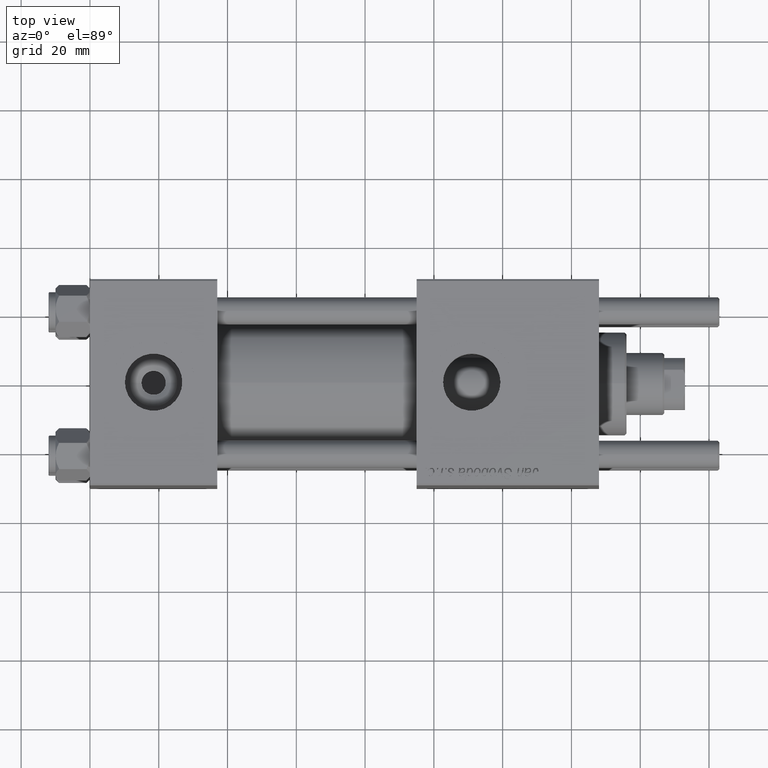
[diagram: clean part render]
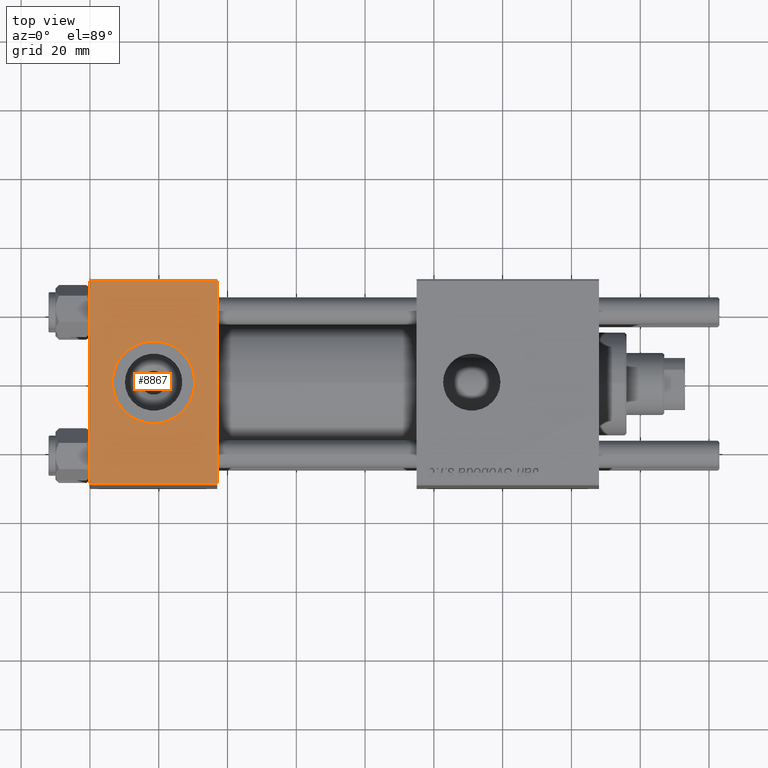
[diagram: same view with one face highlighted and labeled with its STEP entity id]
A machine part, top view. The second image highlights one B-rep face of the part: STEP entity #8867.
In plain terms, the highlighted planar face has unit normal (0, 0, -1).
Its self-contained STEP definition (entity closure, byte-faithful):
#170 = DIRECTION ( 'NONE',  ( 0.000000000000000000, 1.156482317317871725E-16, -1.000000000000000000 ) ) ;
#1518 = PLANE ( 'NONE',  #51018 ) ;
#1839 = LINE ( 'NONE', #24488, #32304 ) ;
#3100 = DIRECTION ( 'NONE',  ( 0.000000000000000000, 0.000000000000000000, 1.000000000000000000 ) ) ;
#4977 = ORIENTED_EDGE ( 'NONE', *, *, #14951, .T. ) ;
#6012 = EDGE_CURVE ( 'NONE', #16220, #22099, #18776, .T. ) ;
#7000 = EDGE_CURVE ( 'NONE', #22099, #16220, #21570, .T. ) ;
#8867 = ADVANCED_FACE ( 'NONE', ( #23334, #48453 ), #1518, .F. ) ;
#10127 = CARTESIAN_POINT ( 'NONE',  ( 6.499999999999997335, -1.999870792976790833E-15, 29.99999999999999645 ) ) ;
#10302 = DIRECTION ( 'NONE',  ( 1.000000000000000000, 0.000000000000000000, 0.000000000000000000 ) ) ;
#11152 = CARTESIAN_POINT ( 'NONE',  ( 37.00000000000000000, 29.49999999999999289, 30.00000000000000000 ) ) ;
#11790 = CARTESIAN_POINT ( 'NONE',  ( 37.00000000000000000, -29.49999999999998579, 29.99999999999999289 ) ) ;
#11849 = VECTOR ( 'NONE', #10302, 1000.000000000000000 ) ;
#12290 = DIRECTION ( 'NONE',  ( 0.000000000000000000, 0.000000000000000000, 1.000000000000000000 ) ) ;
#14298 = EDGE_CURVE ( 'NONE', #47998, #46889, #20913, .T. ) ;
#14718 = CARTESIAN_POINT ( 'NONE',  ( 37.00000000000000000, 29.99999999999999289, 30.00000000000000000 ) ) ;
#14951 = EDGE_CURVE ( 'NONE', #28483, #31571, #1839, .T. ) ;
#16220 = VERTEX_POINT ( 'NONE', #23872 ) ;
#16298 = DIRECTION ( 'NONE',  ( 1.000000000000000000, 0.000000000000000000, 0.000000000000000000 ) ) ;
#17016 = AXIS2_PLACEMENT_3D ( 'NONE', #51668, #12290, #24651 ) ;
#17090 = ORIENTED_EDGE ( 'NONE', *, *, #7000, .F. ) ;
#17932 = LINE ( 'NONE', #26833, #52226 ) ;
#18776 = CIRCLE ( 'NONE', #27063, 12.00000000000000000 ) ;
#19026 = DIRECTION ( 'NONE',  ( 0.000000000000000000, 1.000000000000000000, 1.156482317317871725E-16 ) ) ;
#19135 = CARTESIAN_POINT ( 'NONE',  ( 0.000000000000000000, 29.49999999999999289, 30.00000000000000000 ) ) ;
#20913 = LINE ( 'NONE', #21190, #29535 ) ;
#21190 = CARTESIAN_POINT ( 'NONE',  ( 37.00000000000000000, 29.99999999999999289, 30.00000000000000000 ) ) ;
#21570 = CIRCLE ( 'NONE', #17016, 12.00000000000000000 ) ;
#22099 = VERTEX_POINT ( 'NONE', #10127 ) ;
#22808 = EDGE_LOOP ( 'NONE', ( #37709, #17090 ) ) ;
#23334 = FACE_BOUND ( 'NONE', #22808, .T. ) ;
#23872 = CARTESIAN_POINT ( 'NONE',  ( 30.50000000000000000, -3.469446951953614978E-15, 29.99999999999999645 ) ) ;
#24488 = CARTESIAN_POINT ( 'NONE',  ( 0.000000000000000000, 29.99999999999999289, 30.00000000000000000 ) ) ;
#24651 = DIRECTION ( 'NONE',  ( 1.000000000000000000, 0.000000000000000000, 0.000000000000000000 ) ) ;
#26808 = ORIENTED_EDGE ( 'NONE', *, *, #40247, .T. ) ;
#26833 = CARTESIAN_POINT ( 'NONE',  ( 0.000000000000000000, 29.49999999999999289, 30.00000000000000000 ) ) ;
#27063 = AXIS2_PLACEMENT_3D ( 'NONE', #29798, #3100, #16298 ) ;
#28483 = VERTEX_POINT ( 'NONE', #19135 ) ;
#29535 = VECTOR ( 'NONE', #34393, 1000.000000000000000 ) ;
#29798 = CARTESIAN_POINT ( 'NONE',  ( 18.50000000000000000, -3.469446951953614978E-15, 29.99999999999999645 ) ) ;
#31571 = VERTEX_POINT ( 'NONE', #51212 ) ;
#32304 = VECTOR ( 'NONE', #36858, 1000.000000000000000 ) ;
#34393 = DIRECTION ( 'NONE',  ( 0.000000000000000000, -1.000000000000000000, -1.156482317317871725E-16 ) ) ;
#36858 = DIRECTION ( 'NONE',  ( 0.000000000000000000, -1.000000000000000000, -1.156482317317871725E-16 ) ) ;
#37576 = LINE ( 'NONE', #55113, #11849 ) ;
#37709 = ORIENTED_EDGE ( 'NONE', *, *, #6012, .F. ) ;
#39260 = ORIENTED_EDGE ( 'NONE', *, *, #14298, .F. ) ;
#40247 = EDGE_CURVE ( 'NONE', #47998, #28483, #17932, .T. ) ;
#42381 = EDGE_LOOP ( 'NONE', ( #4977, #55601, #39260, #26808 ) ) ;
#44871 = EDGE_CURVE ( 'NONE', #31571, #46889, #37576, .T. ) ;
#45225 = DIRECTION ( 'NONE',  ( -1.000000000000000000, 0.000000000000000000, 0.000000000000000000 ) ) ;
#46889 = VERTEX_POINT ( 'NONE', #11790 ) ;
#47998 = VERTEX_POINT ( 'NONE', #11152 ) ;
#48453 = FACE_OUTER_BOUND ( 'NONE', #42381, .T. ) ;
#51018 = AXIS2_PLACEMENT_3D ( 'NONE', #14718, #170, #19026 ) ;
#51212 = CARTESIAN_POINT ( 'NONE',  ( 0.000000000000000000, -29.49999999999998579, 29.99999999999999289 ) ) ;
#51668 = CARTESIAN_POINT ( 'NONE',  ( 18.50000000000000000, -3.469446951953614978E-15, 29.99999999999999645 ) ) ;
#52226 = VECTOR ( 'NONE', #45225, 1000.000000000000000 ) ;
#55113 = CARTESIAN_POINT ( 'NONE',  ( 37.00000000000000000, -29.50000000000000000, 29.99999999999999289 ) ) ;
#55601 = ORIENTED_EDGE ( 'NONE', *, *, #44871, .T. ) ;